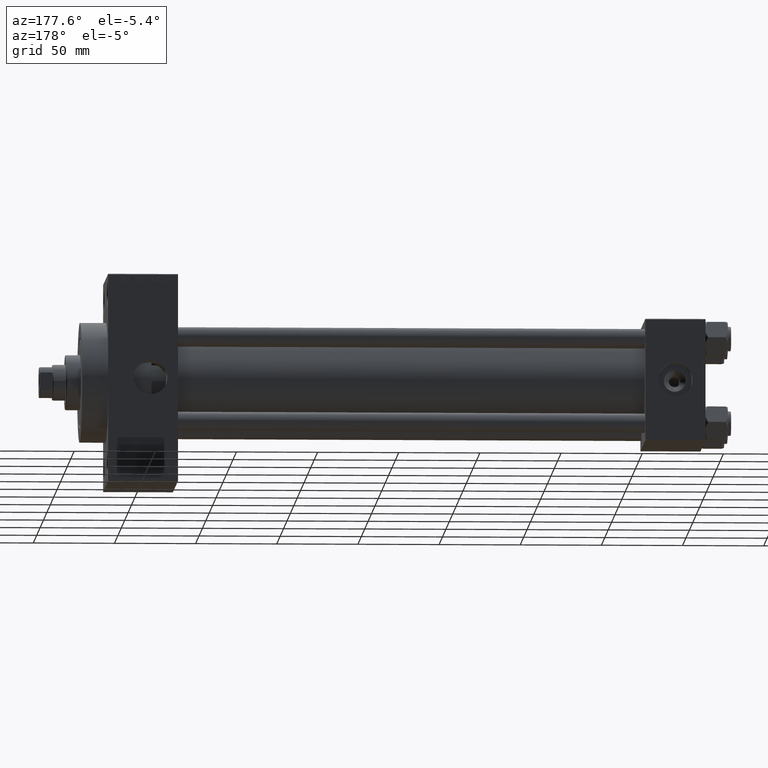
[diagram: clean part render]
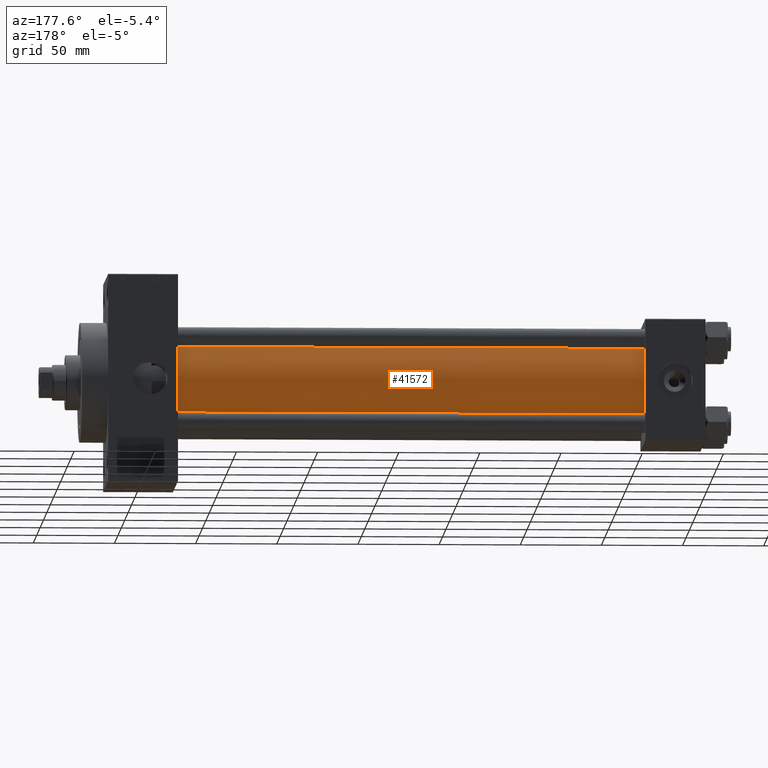
[diagram: same view with one face highlighted and labeled with its STEP entity id]
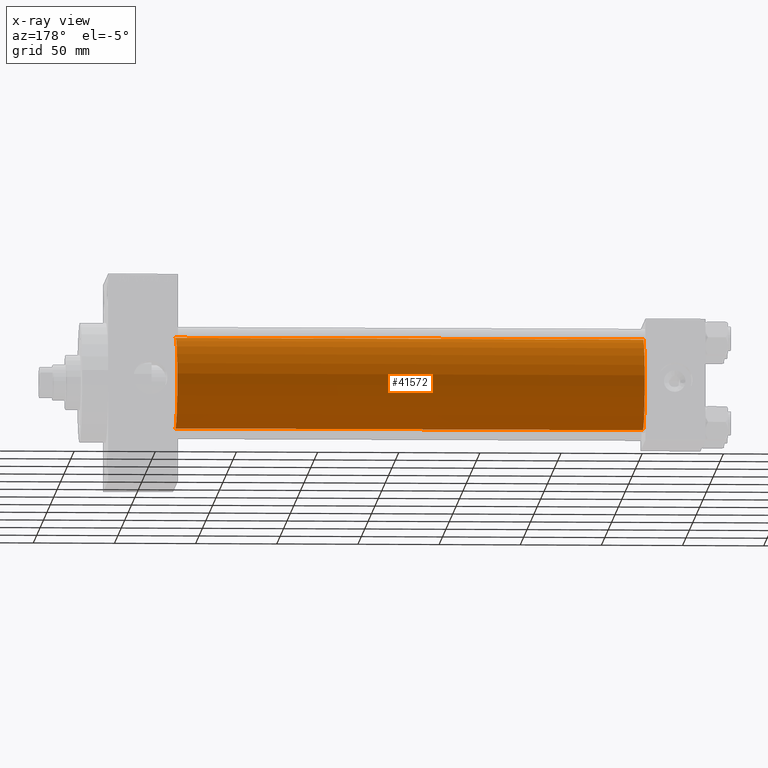
[diagram: x-ray of the same camera — body ghosted, the highlighted face saturated]
A machine part, auxiliary view. The second image highlights one B-rep face of the part: STEP entity #41572.
The next image is the same camera in x-ray: the body ghosted, the highlighted face saturated — about 0% of this face is hidden behind the body in this view.
In plain terms, the highlighted cylindrical surface (partial cylindrical patch) has radius 28 mm, axis along (-1, -0, -0).
Its self-contained STEP definition (entity closure, byte-faithful):
#617 = CARTESIAN_POINT ( 'NONE',  ( 324.9999999999999432, -2.602085213965210642E-15, 0.000000000000000000 ) ) ;
#1476 = ORIENTED_EDGE ( 'NONE', *, *, #9810, .F. ) ;
#1625 = CIRCLE ( 'NONE', #33741, 28.00000000000000000 ) ;
#2001 = VERTEX_POINT ( 'NONE', #20182 ) ;
#4697 = DIRECTION ( 'NONE',  ( -1.000000000000000000, -0.000000000000000000, -0.000000000000000000 ) ) ;
#4885 = DIRECTION ( 'NONE',  ( 1.000000000000000000, 0.000000000000000000, 0.000000000000000000 ) ) ;
#6128 = VERTEX_POINT ( 'NONE', #39745 ) ;
#7295 = AXIS2_PLACEMENT_3D ( 'NONE', #617, #4697, #15498 ) ;
#9810 = EDGE_CURVE ( 'NONE', #2001, #6128, #29739, .T. ) ;
#10279 = CARTESIAN_POINT ( 'NONE',  ( 324.9999999999999432, 8.269258236473784371E-16, -28.00000000000000000 ) ) ;
#10668 = VERTEX_POINT ( 'NONE', #13845 ) ;
#11415 = DIRECTION ( 'NONE',  ( 0.000000000000000000, 0.000000000000000000, 1.000000000000000000 ) ) ;
#11608 = DIRECTION ( 'NONE',  ( 0.000000000000000000, 0.000000000000000000, -1.000000000000000000 ) ) ;
#12207 = ORIENTED_EDGE ( 'NONE', *, *, #24511, .T. ) ;
#13676 = AXIS2_PLACEMENT_3D ( 'NONE', #15910, #4885, #11608 ) ;
#13845 = CARTESIAN_POINT ( 'NONE',  ( 36.99999999999997868, -2.602085213965210642E-15, 28.00000000000000000 ) ) ;
#14662 = EDGE_LOOP ( 'NONE', ( #1476, #15740, #12207, #28685 ) ) ;
#15498 = DIRECTION ( 'NONE',  ( 0.000000000000000000, 0.000000000000000000, 1.000000000000000000 ) ) ;
#15740 = ORIENTED_EDGE ( 'NONE', *, *, #27749, .T. ) ;
#15910 = CARTESIAN_POINT ( 'NONE',  ( 324.9999999999999432, -2.602085213965210642E-15, 0.000000000000000000 ) ) ;
#16596 = CARTESIAN_POINT ( 'NONE',  ( 36.99999999999997868, 8.269258236473784371E-16, -28.00000000000000000 ) ) ;
#18043 = DIRECTION ( 'NONE',  ( -1.000000000000000000, -0.000000000000000000, -0.000000000000000000 ) ) ;
#20182 = CARTESIAN_POINT ( 'NONE',  ( 324.9999999999999432, 8.269258236473784371E-16, -28.00000000000000000 ) ) ;
#20827 = DIRECTION ( 'NONE',  ( -1.000000000000000000, -0.000000000000000000, -0.000000000000000000 ) ) ;
#22193 = DIRECTION ( 'NONE',  ( 1.000000000000000000, -0.000000000000000000, 0.000000000000000000 ) ) ;
#22671 = FACE_OUTER_BOUND ( 'NONE', #14662, .T. ) ;
#23040 = VECTOR ( 'NONE', #20827, 1000.000000000000000 ) ;
#24183 = VECTOR ( 'NONE', #18043, 1000.000000000000000 ) ;
#24511 = EDGE_CURVE ( 'NONE', #37306, #10668, #1625, .T. ) ;
#25551 = CARTESIAN_POINT ( 'NONE',  ( 36.99999999999997868, -2.602085213965210642E-15, 0.000000000000000000 ) ) ;
#27465 = LINE ( 'NONE', #42086, #24183 ) ;
#27749 = EDGE_CURVE ( 'NONE', #2001, #37306, #42628, .T. ) ;
#28685 = ORIENTED_EDGE ( 'NONE', *, *, #44030, .F. ) ;
#29739 = CIRCLE ( 'NONE', #13676, 28.00000000000000000 ) ;
#33741 = AXIS2_PLACEMENT_3D ( 'NONE', #25551, #22193, #11415 ) ;
#37306 = VERTEX_POINT ( 'NONE', #16596 ) ;
#39745 = CARTESIAN_POINT ( 'NONE',  ( 324.9999999999999432, -2.602085213965210642E-15, 28.00000000000000000 ) ) ;
#40418 = CYLINDRICAL_SURFACE ( 'NONE', #7295, 28.00000000000000000 ) ;
#41572 = ADVANCED_FACE ( 'NONE', ( #22671 ), #40418, .T. ) ;
#42086 = CARTESIAN_POINT ( 'NONE',  ( 324.9999999999999432, -2.602085213965210642E-15, 28.00000000000000000 ) ) ;
#42628 = LINE ( 'NONE', #10279, #23040 ) ;
#44030 = EDGE_CURVE ( 'NONE', #6128, #10668, #27465, .T. ) ;